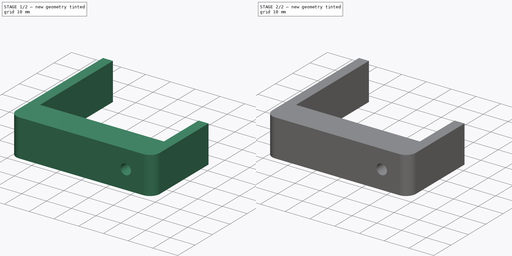
[diagram: build sequence overview — one tinted view per stage of 2, left to right]
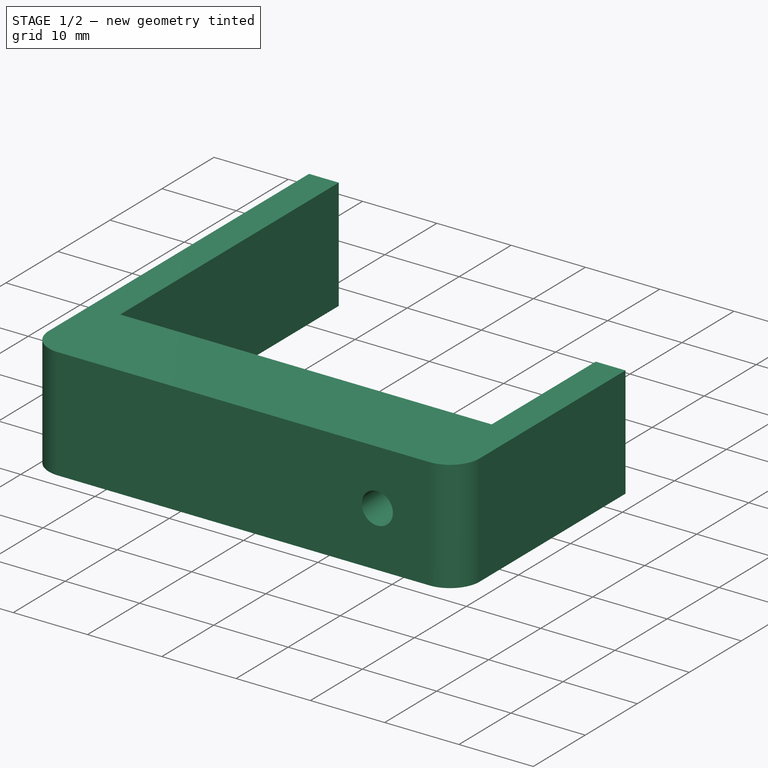
[diagram: stage 1 of 2 — iso view after this stage's code; geometry added in this stage tinted green]
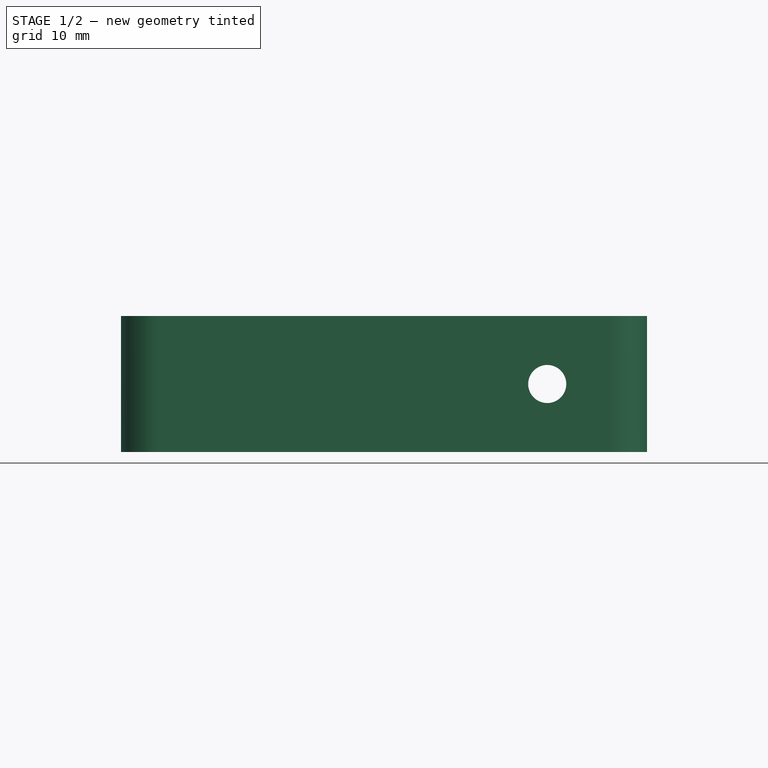
[diagram: stage 1 of 2 — front view after this stage's code; geometry added in this stage tinted green]
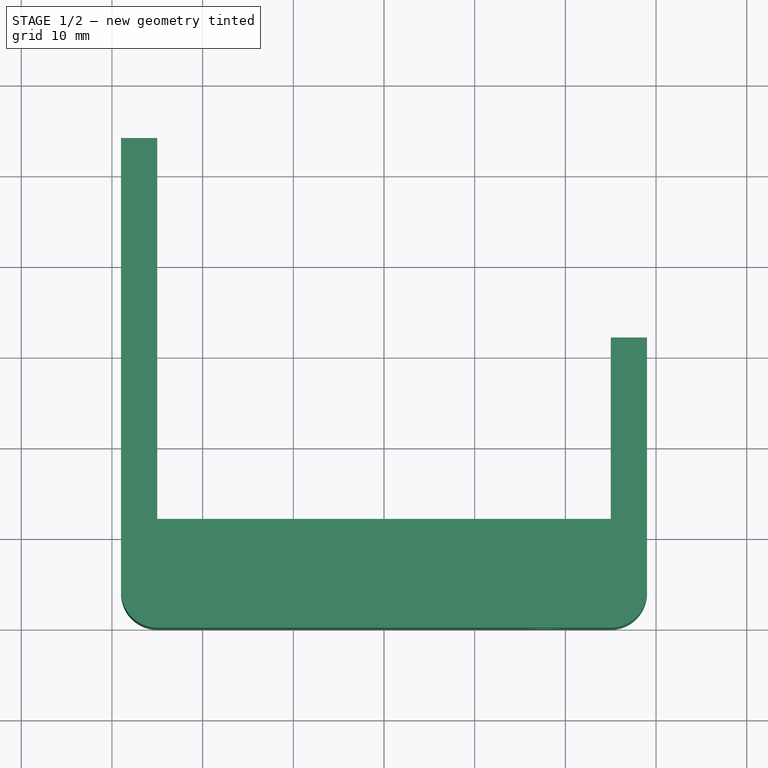
[diagram: stage 1 of 2 — top view after this stage's code; geometry added in this stage tinted green]
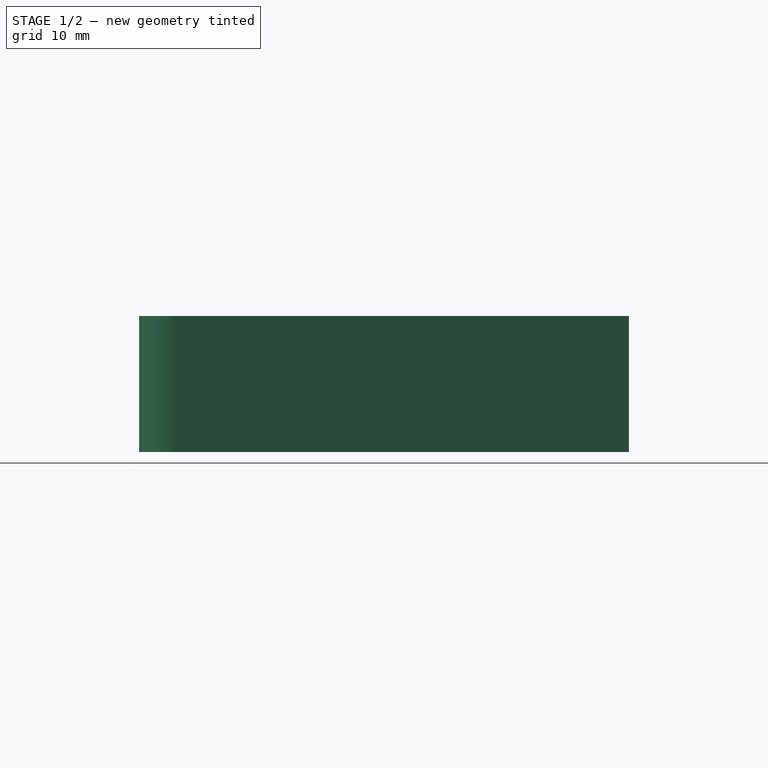
[diagram: stage 1 of 2 — right view after this stage's code; geometry added in this stage tinted green]
FCSTD DOCUMENT  (FreeCAD 0.15R4671 (Git))
Label: power-supply-mount
License: All rights reserved
LicenseURL: http://es.wikipedia.org/wiki/Todos_los_derechos_reservados
objects: Sketcher::SketchObject×3, PartDesign::Pocket×2, PartDesign::Pad×1
note: 9 computed .brp shape members not serialized (recipe doc carries the construction recipe); baked Part::Feature solids carry a one-line shape summary decoded from their .brp

FEATURE [Sketcher::SketchObject] Sketch
  sketch-geometry (10):
    g0: LineSegment StartX=-25 StartY=12 StartZ=0 EndX=25 EndY=12 EndZ=0
    g1: LineSegment StartX=25 StartY=12 StartZ=0 EndX=25 EndY=32 EndZ=0
    g2: LineSegment StartX=25 StartY=32 StartZ=0 EndX=29 EndY=32 EndZ=0
    g3: LineSegment StartX=29 StartY=32 StartZ=0 EndX=29 EndY=3.99883 EndZ=0
    g4: LineSegment StartX=25.0012 StartY=0 StartZ=0 EndX=-24.9988 EndY=0 EndZ=0
    g5: LineSegment StartX=-29 StartY=4.00117 StartZ=0 EndX=-29 EndY=54 EndZ=0
    g6: LineSegment StartX=-29 StartY=54 StartZ=0 EndX=-25 EndY=54 EndZ=0
    g7: LineSegment StartX=-25 StartY=54 StartZ=0 EndX=-25 EndY=12 EndZ=0
    g8: ArcOfCircle CenterX=-24.9988 CenterY=4.00117 CenterZ=0 NormalX=0 NormalY=0 NormalZ=1 Radius=4.00117 StartAngle=3.14159 EndAngle=4.71239
    g9: ArcOfCircle CenterX=25.0012 CenterY=3.99883 CenterZ=0 NormalX=0 NormalY=0 NormalZ=1 Radius=3.99883 StartAngle=4.71239 EndAngle=6.28319
  constraints (26):
    c: Horizontal(g0)
    c: Coincident(g0,g1)
    c: Vertical(g1)
    c: Coincident(g1,g2)
    c: Horizontal(g2)
    c: Coincident(g2,g3)
    c: Vertical(g3)
    c: Horizontal(g4)
    c: Vertical(g5)
    c: Coincident(g5,g6)
    c: Horizontal(g6)
    c: Coincident(g6,g7)
    c: Coincident(g7,g0)
    c: Vertical(g7)
    c: Symmetric(g0,g0,g-2)
    c: Distance(g0) = 50
    c: Equal(g6,g2)
    c: DistanceX(g6) = 4
    c: PointOnObject(g-1,g4)
    c: DistanceY(g1) = 20
    c: Tangent(g4,g8) = 1.5708
    c: Tangent(g5,g8) = 1.5708
    c: Tangent(g4,g9) = 1.5708
    c: Tangent(g3,g9) = 1.5708
    c: Equal(g4,g0)
    c: Distance(g0,g4) = 12
FEATURE [PartDesign::Pad] Pad
  Length = 15
  Length2 = 100
  Sketch = -> Sketch
  Type = 0
FEATURE [Sketcher::SketchObject] Sketch001
  ExternalGeometry = -> [Pad]
  Placement = pos=(0,0,0) rot=(1,0,0;1.5708rad)
  Support = -> Pad [Face9]
  sketch-geometry (1):
    g0: Circle CenterX=18 CenterY=7.5 CenterZ=0 NormalX=0 NormalY=0 NormalZ=1 Radius=2.1
  constraints (3):
    c: Radius(g0) = 2.1
    c: DistanceY(g-1,g0) = 7.5
    c: DistanceX(g-2,g0) = 18
FEATURE [PartDesign::Pocket] Pocket  label="pocket"
  Length = 5
  Sketch = -> Sketch001
  Type = 1
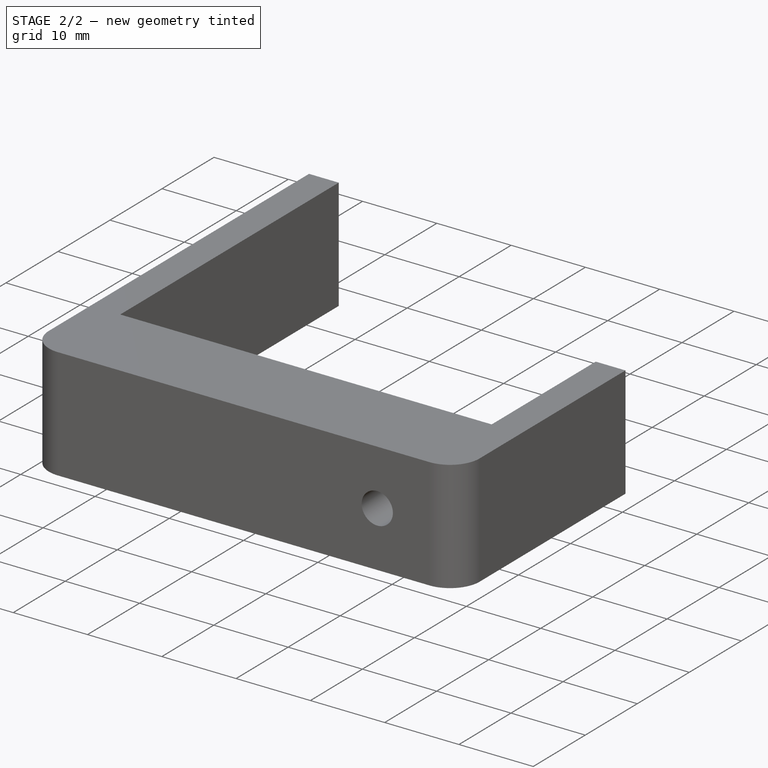
[diagram: stage 2 of 2 — iso view after this stage's code; geometry added in this stage tinted green]
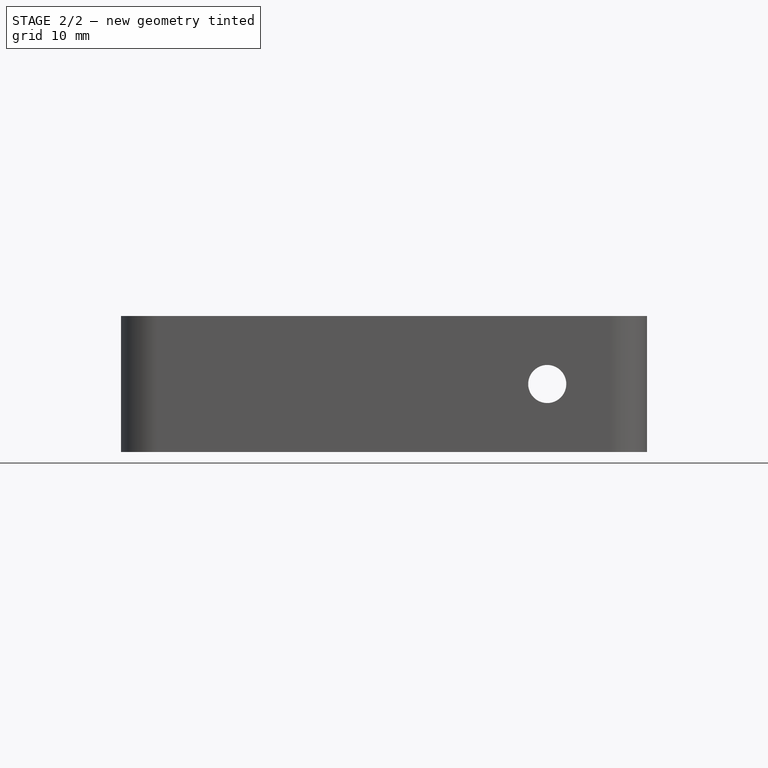
[diagram: stage 2 of 2 — front view after this stage's code; geometry added in this stage tinted green]
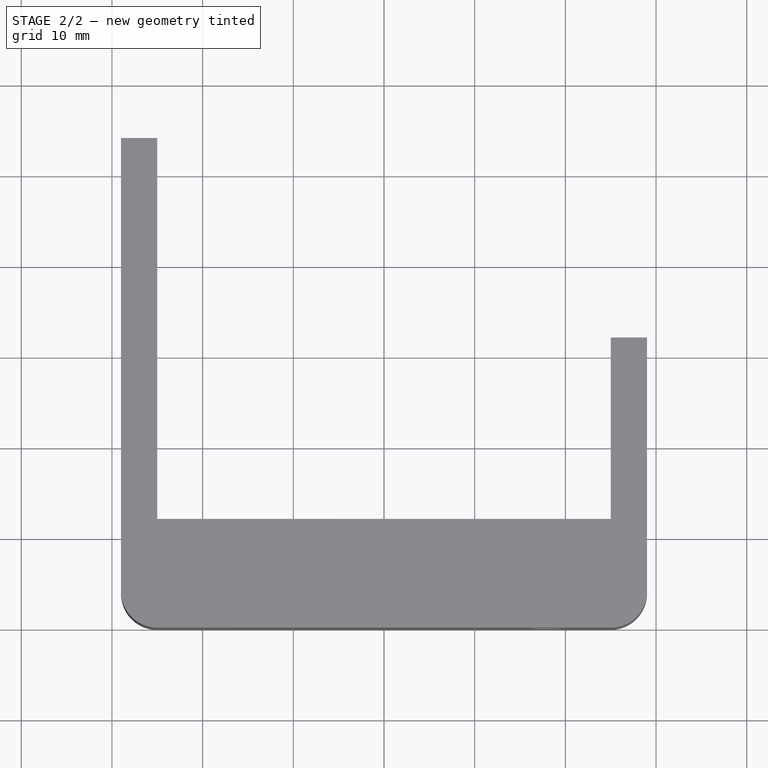
[diagram: stage 2 of 2 — top view after this stage's code; geometry added in this stage tinted green]
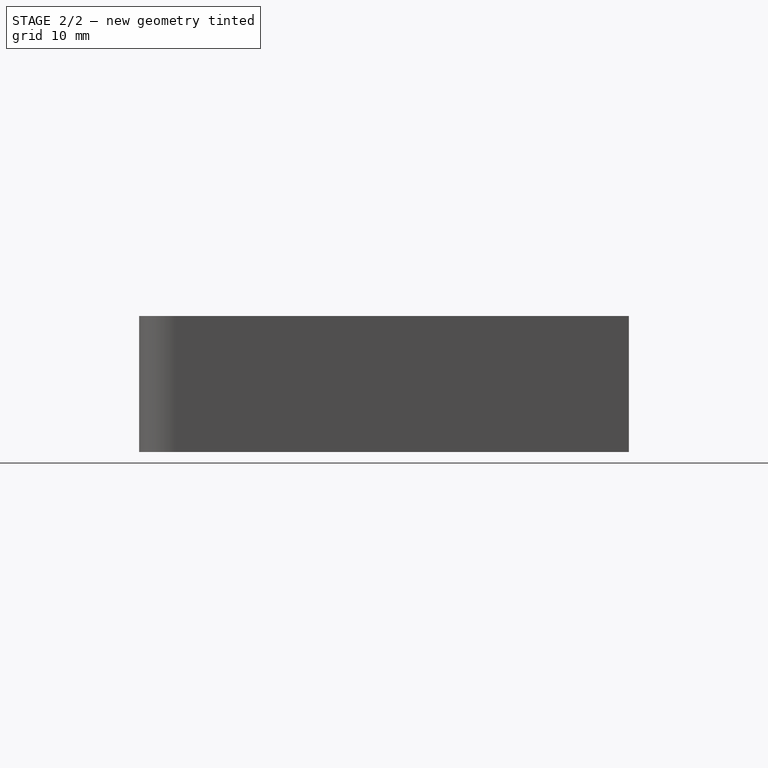
[diagram: stage 2 of 2 — right view after this stage's code; geometry added in this stage tinted green]
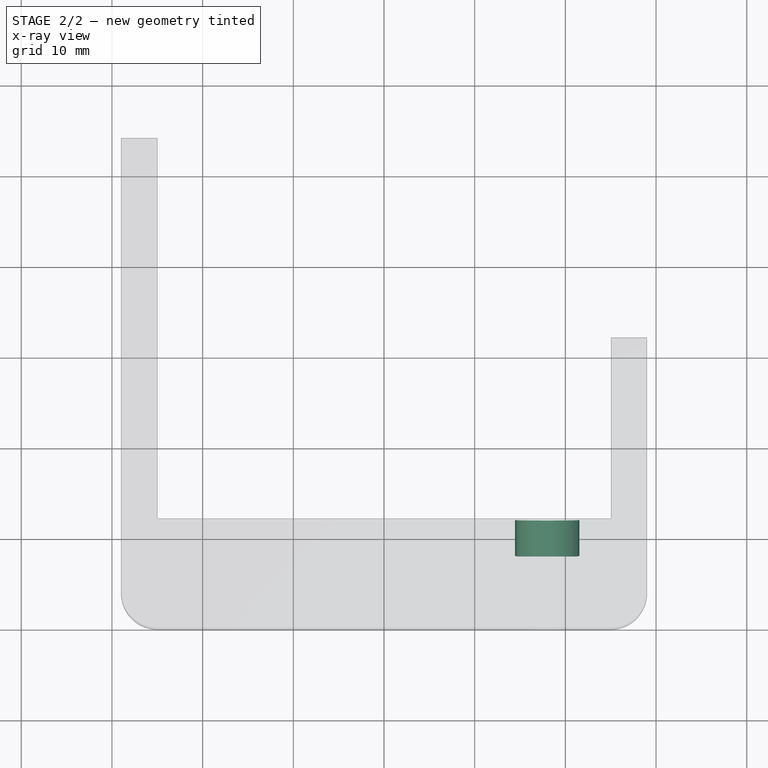
[diagram: stage 2 of 2 — x-ray composite at the top view; earlier geometry ghosted, this stage's added geometry solid]
FEATURE [Sketcher::SketchObject] Sketch002
  ExternalGeometry = -> [Pocket]
  Placement = pos=(0,12,0) rot=(0,0.707107,0.707107;3.14159rad)
  Support = -> Pocket [Face8]
  sketch-geometry (1):
    g0: Circle CenterX=-18 CenterY=7.5 CenterZ=0 NormalX=0 NormalY=0 NormalZ=1 Radius=3.55
  constraints (2):
    c: Coincident(g0,g-3)
    c: Radius(g0) = 3.55
FEATURE [PartDesign::Pocket] Pocket001  label="power-supply-mount-final"
  Length = 4
  Sketch = -> Sketch002
  Type = 0
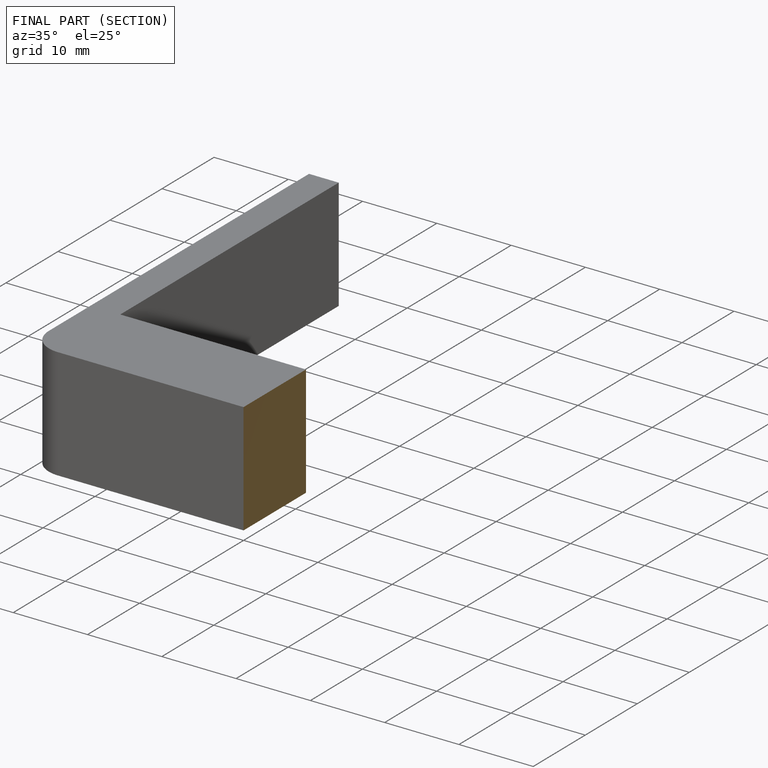
[diagram: finished part — half-section view (interior)]
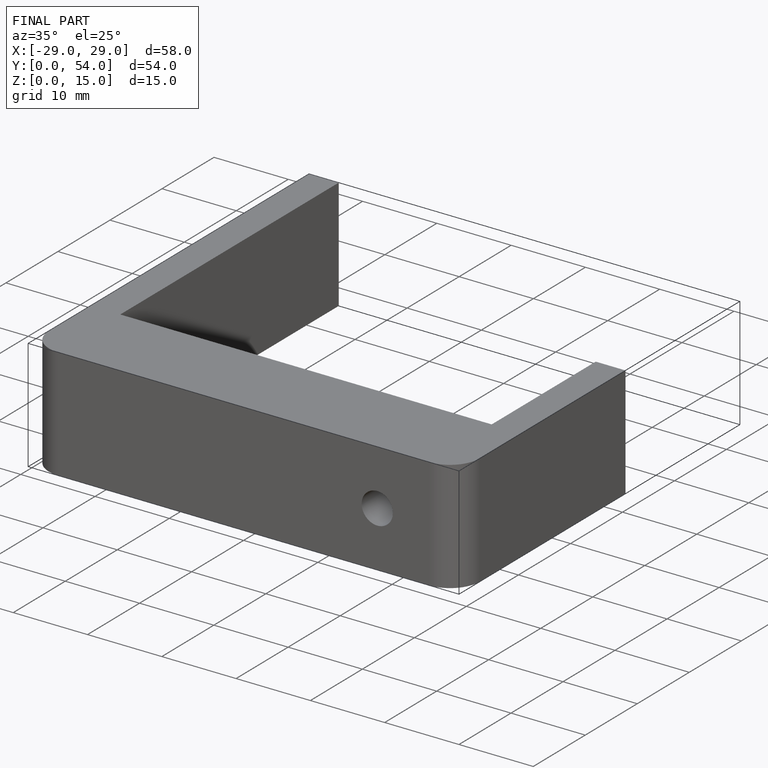
[diagram: finished part — iso view with bounding-box wireframe]
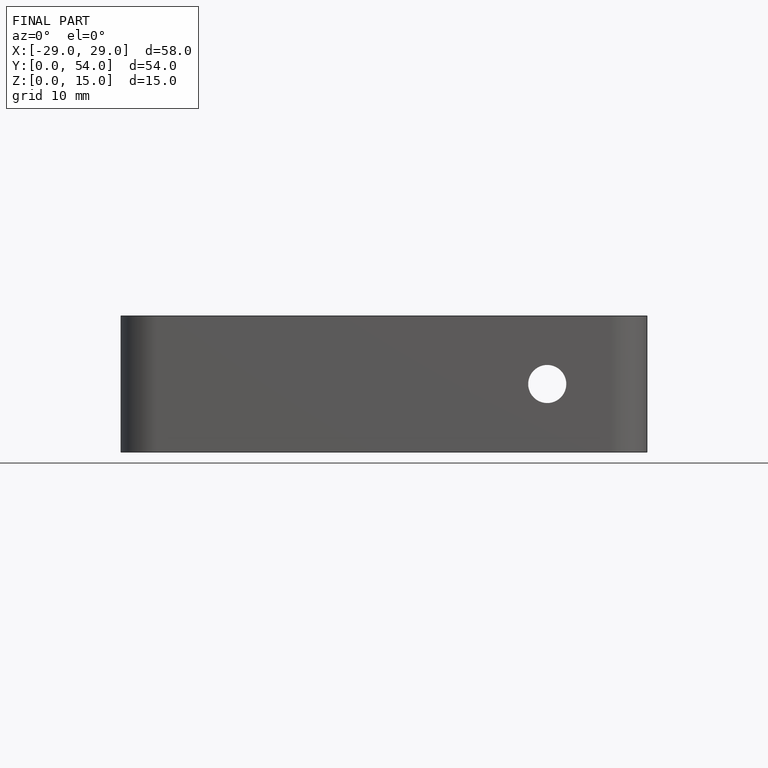
[diagram: finished part — front view with bounding-box wireframe]
